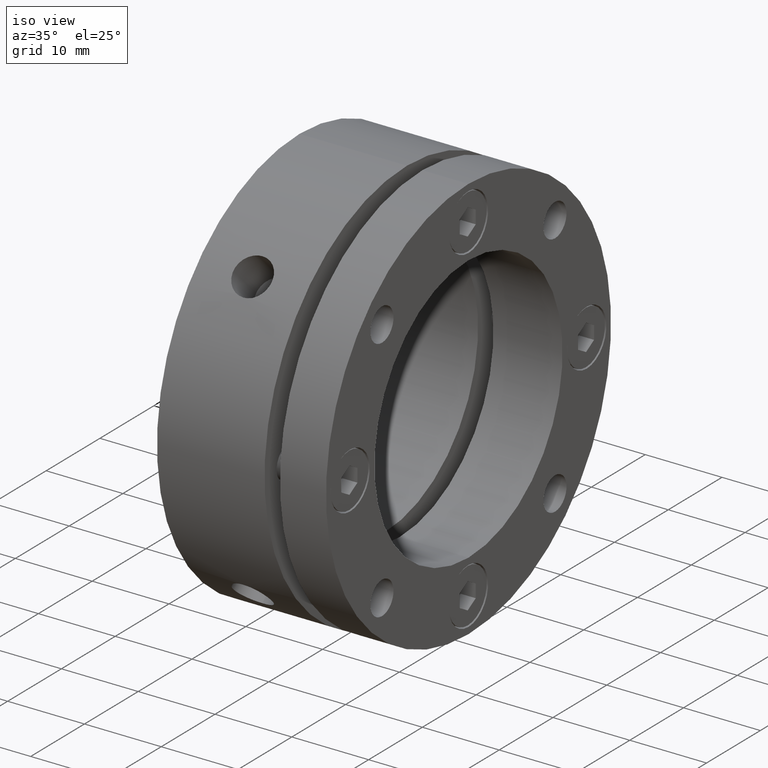
[diagram: clean part render]
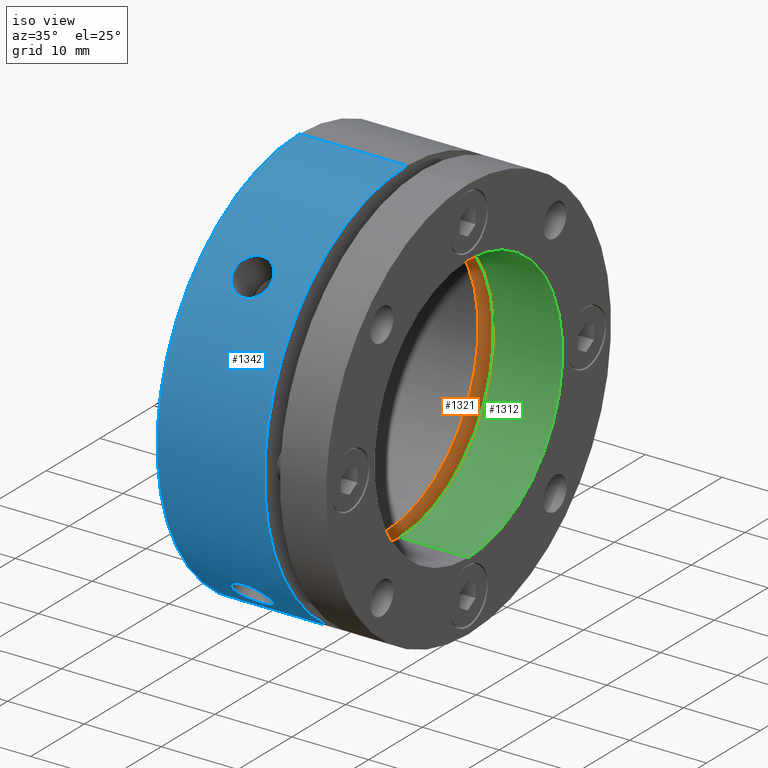
[diagram: same view with three faces highlighted in distinct colors, each labeled with its STEP entity id]
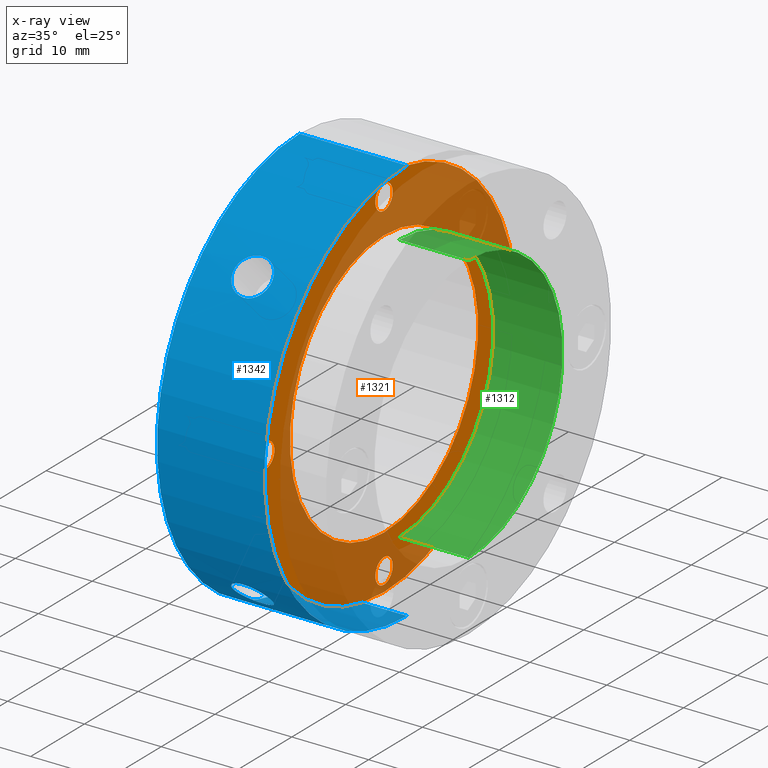
[diagram: x-ray of the same camera — body ghosted, the three highlighted faces saturated]
A machine part, iso view with three faces highlighted in distinct colors.
The next image is the same camera in x-ray (body ghosted, the three faces saturated) — at least one of them is partly hidden behind the body in this view.
Their STEP definitions:

[orange] entity #1321 — the highlighted planar face has unit normal (-1, 0, 0).
#15 = CARTESIAN_POINT ( 'NONE',  ( 11.00000000000002300, 22.00000000000001400, -4.041333999999999800E-015 ) ) ;
#16 = DIRECTION ( 'NONE',  ( -1.000000000000000000, 0.0000000000000000000, 0.0000000000000000000 ) ) ;
#17 = DIRECTION ( 'NONE',  ( 0.0000000000000000000, 0.0000000000000000000, 1.000000000000000000 ) ) ;
#451 = CARTESIAN_POINT ( 'NONE',  ( 11.00000000000002300, -2.694223000000000100E-015, -22.00000000000001400 ) ) ;
#452 = DIRECTION ( 'NONE',  ( -1.000000000000000000, 0.0000000000000000000, 0.0000000000000000000 ) ) ;
#453 = DIRECTION ( 'NONE',  ( 0.0000000000000000000, 0.0000000000000000000, 1.000000000000000000 ) ) ;
#462 = CARTESIAN_POINT ( 'NONE',  ( 11.00000000000002300, 22.00000000000001400, -4.041333999999999800E-015 ) ) ;
#463 = DIRECTION ( 'NONE',  ( -1.000000000000000000, 0.0000000000000000000, 0.0000000000000000000 ) ) ;
#464 = DIRECTION ( 'NONE',  ( 0.0000000000000000000, 0.0000000000000000000, 1.000000000000000000 ) ) ;
#468 = CARTESIAN_POINT ( 'NONE',  ( 11.00000000000002300, -22.00000000000001400, 1.347110999999999900E-015 ) ) ;
#469 = DIRECTION ( 'NONE',  ( -1.000000000000000000, 0.0000000000000000000, 0.0000000000000000000 ) ) ;
#470 = DIRECTION ( 'NONE',  ( 0.0000000000000000000, 0.0000000000000000000, 1.000000000000000000 ) ) ;
#474 = CARTESIAN_POINT ( 'NONE',  ( 11.00000000000002300, 0.0000000000000000000, 0.0000000000000000000 ) ) ;
#475 = DIRECTION ( 'NONE',  ( -1.000000000000000000, -0.0000000000000000000, -0.0000000000000000000 ) ) ;
#476 = DIRECTION ( 'NONE',  ( 0.0000000000000000000, 0.0000000000000000000, -1.000000000000000000 ) ) ;
#483 = CARTESIAN_POINT ( 'NONE',  ( 11.00000000000002300, 0.0000000000000000000, 22.00000000000001400 ) ) ;
#484 = DIRECTION ( 'NONE',  ( -1.000000000000000000, 0.0000000000000000000, 0.0000000000000000000 ) ) ;
#485 = DIRECTION ( 'NONE',  ( 0.0000000000000000000, 0.0000000000000000000, 1.000000000000000000 ) ) ;
#553 = CARTESIAN_POINT ( 'NONE',  ( 11.00000000000001800, 0.0000000000000000000, 0.0000000000000000000 ) ) ;
#554 = DIRECTION ( 'NONE',  ( -1.000000000000000000, 0.0000000000000000000, 0.0000000000000000000 ) ) ;
#555 = DIRECTION ( 'NONE',  ( 0.0000000000000000000, 0.0000000000000000000, 1.000000000000000000 ) ) ;
#801 = DIRECTION ( 'NONE',  ( -1.000000000000000000, 0.0000000000000000000, 0.0000000000000000000 ) ) ;
#807 = PLANE ( 'NONE',  #1769 ) ;
#808 = CARTESIAN_POINT ( 'NONE',  ( 11.00000000000002300, 12.25000000000000400, 0.0000000000000000000 ) ) ;
#810 = DIRECTION ( 'NONE',  ( 0.0000000000000000000, 0.0000000000000000000, 1.000000000000000000 ) ) ;
#824 = EDGE_CURVE ( 'NONE', #2826, #2905, #1049, .T. ) ;
#890 = EDGE_CURVE ( 'NONE', #2929, #2853, #1143, .T. ) ;
#893 = EDGE_CURVE ( 'NONE', #2905, #2826, #1149, .T. ) ;
#895 = EDGE_CURVE ( 'NONE', #2877, #2856, #1147, .T. ) ;
#898 = EDGE_CURVE ( 'NONE', #2912, #2830, #1154, .T. ) ;
#901 = EDGE_CURVE ( 'NONE', #2894, #2862, #1158, .T. ) ;
#929 = EDGE_CURVE ( 'NONE', #2926, #2935, #1203, .T. ) ;
#1049 = CIRCLE ( 'NONE', #3530, 1.621000000000000000 ) ;
#1143 = CIRCLE ( 'NONE', #3026, 1.621000000000000900 ) ;
#1147 = CIRCLE ( 'NONE', #3030, 1.621000000000000000 ) ;
#1149 = CIRCLE ( 'NONE', #3029, 1.621000000000000000 ) ;
#1154 = CIRCLE ( 'NONE', #3031, 17.50000000000000000 ) ;
#1158 = CIRCLE ( 'NONE', #3033, 1.621000000000000900 ) ;
#1203 = CIRCLE ( 'NONE', #3046, 24.50000000000000700 ) ;
#1321 = ADVANCED_FACE ( 'NONE', ( #1601, #1605, #1602, #1604, #1603, #1606 ), #807, .F. ) ;
#1353 = EDGE_LOOP ( 'NONE', ( #3201, #3202 ) ) ;
#1358 = EDGE_LOOP ( 'NONE', ( #3205, #3206 ) ) ;
#1362 = EDGE_LOOP ( 'NONE', ( #3195, #3196 ) ) ;
#1367 = EDGE_LOOP ( 'NONE', ( #3203, #3204 ) ) ;
#1368 = EDGE_LOOP ( 'NONE', ( #3197, #3198 ) ) ;
#1369 = EDGE_LOOP ( 'NONE', ( #3199, #3200 ) ) ;
#1601 = FACE_BOUND ( 'NONE', #1362, .T. ) ;
#1602 = FACE_BOUND ( 'NONE', #1369, .T. ) ;
#1603 = FACE_BOUND ( 'NONE', #1367, .T. ) ;
#1604 = FACE_BOUND ( 'NONE', #1353, .T. ) ;
#1605 = FACE_BOUND ( 'NONE', #1368, .T. ) ;
#1606 = FACE_OUTER_BOUND ( 'NONE', #1358, .T. ) ;
#1769 = AXIS2_PLACEMENT_3D ( 'NONE', #808, #801, #810 ) ;
#1847 = AXIS2_PLACEMENT_3D ( 'NONE', #2391, #2392, #2393 ) ;
#1853 = AXIS2_PLACEMENT_3D ( 'NONE', #2409, #2410, #2411 ) ;
#1854 = AXIS2_PLACEMENT_3D ( 'NONE', #2412, #2413, #2414 ) ;
#1855 = AXIS2_PLACEMENT_3D ( 'NONE', #2417, #2418, #2419 ) ;
#1856 = AXIS2_PLACEMENT_3D ( 'NONE', #2420, #2421, #2422 ) ;
#2006 = CARTESIAN_POINT ( 'NONE',  ( 11.00000000000002300, 22.00000000000001400, 1.620999999999996000 ) ) ;
#2007 = CARTESIAN_POINT ( 'NONE',  ( 11.00000000000002300, 2.143131898507868200E-015, 17.50000000000000000 ) ) ;
#2027 = CARTESIAN_POINT ( 'NONE',  ( 11.00000000000002300, -2.694223000000000100E-015, -20.37900000000001200 ) ) ;
#2030 = CARTESIAN_POINT ( 'NONE',  ( 11.00000000000002300, -22.00000000000001400, 1.621000000000001300 ) ) ;
#2035 = CARTESIAN_POINT ( 'NONE',  ( 11.00000000000002300, 0.0000000000000000000, 23.62100000000001300 ) ) ;
#2048 = CARTESIAN_POINT ( 'NONE',  ( 11.00000000000002300, -22.00000000000001400, -1.620999999999998700 ) ) ;
#2063 = CARTESIAN_POINT ( 'NONE',  ( 11.00000000000002300, 1.985152461417858200E-016, 20.37900000000001200 ) ) ;
#2073 = CARTESIAN_POINT ( 'NONE',  ( 11.00000000000002300, 22.00000000000001400, -1.621000000000004200 ) ) ;
#2080 = CARTESIAN_POINT ( 'NONE',  ( 11.00000000000002300, 0.0000000000000000000, -17.50000000000000000 ) ) ;
#2094 = CARTESIAN_POINT ( 'NONE',  ( 11.00000000000001800, 3.000384657911016300E-015, -24.50000000000000700 ) ) ;
#2097 = CARTESIAN_POINT ( 'NONE',  ( 11.00000000000002300, -2.495707753858214300E-015, -23.62100000000001300 ) ) ;
#2103 = CARTESIAN_POINT ( 'NONE',  ( 11.00000000000001800, 0.0000000000000000000, 24.50000000000000700 ) ) ;
#2391 = CARTESIAN_POINT ( 'NONE',  ( 11.00000000000001800, 0.0000000000000000000, 0.0000000000000000000 ) ) ;
#2392 = DIRECTION ( 'NONE',  ( -1.000000000000000000, 0.0000000000000000000, 0.0000000000000000000 ) ) ;
#2393 = DIRECTION ( 'NONE',  ( 0.0000000000000000000, 0.0000000000000000000, 1.000000000000000000 ) ) ;
#2409 = CARTESIAN_POINT ( 'NONE',  ( 11.00000000000002300, 0.0000000000000000000, 0.0000000000000000000 ) ) ;
#2410 = DIRECTION ( 'NONE',  ( -1.000000000000000000, -0.0000000000000000000, -0.0000000000000000000 ) ) ;
#2411 = DIRECTION ( 'NONE',  ( 0.0000000000000000000, 0.0000000000000000000, -1.000000000000000000 ) ) ;
#2412 = CARTESIAN_POINT ( 'NONE',  ( 11.00000000000002300, 0.0000000000000000000, 22.00000000000001400 ) ) ;
#2413 = DIRECTION ( 'NONE',  ( -1.000000000000000000, 0.0000000000000000000, 0.0000000000000000000 ) ) ;
#2414 = DIRECTION ( 'NONE',  ( 0.0000000000000000000, 0.0000000000000000000, 1.000000000000000000 ) ) ;
#2417 = CARTESIAN_POINT ( 'NONE',  ( 11.00000000000002300, -22.00000000000001400, 1.347110999999999900E-015 ) ) ;
#2418 = DIRECTION ( 'NONE',  ( -1.000000000000000000, 0.0000000000000000000, 0.0000000000000000000 ) ) ;
#2419 = DIRECTION ( 'NONE',  ( 0.0000000000000000000, 0.0000000000000000000, 1.000000000000000000 ) ) ;
#2420 = CARTESIAN_POINT ( 'NONE',  ( 11.00000000000002300, -2.694223000000000100E-015, -22.00000000000001400 ) ) ;
#2421 = DIRECTION ( 'NONE',  ( -1.000000000000000000, 0.0000000000000000000, 0.0000000000000000000 ) ) ;
#2422 = DIRECTION ( 'NONE',  ( 0.0000000000000000000, 0.0000000000000000000, 1.000000000000000000 ) ) ;
#2603 = CIRCLE ( 'NONE', #1847, 24.50000000000000700 ) ;
#2609 = CIRCLE ( 'NONE', #1853, 17.50000000000000000 ) ;
#2610 = CIRCLE ( 'NONE', #1854, 1.621000000000000900 ) ;
#2611 = CIRCLE ( 'NONE', #1855, 1.621000000000000000 ) ;
#2612 = CIRCLE ( 'NONE', #1856, 1.621000000000000900 ) ;
#2826 = VERTEX_POINT ( 'NONE', #2006 ) ;
#2830 = VERTEX_POINT ( 'NONE', #2007 ) ;
#2853 = VERTEX_POINT ( 'NONE', #2027 ) ;
#2856 = VERTEX_POINT ( 'NONE', #2030 ) ;
#2862 = VERTEX_POINT ( 'NONE', #2035 ) ;
#2877 = VERTEX_POINT ( 'NONE', #2048 ) ;
#2894 = VERTEX_POINT ( 'NONE', #2063 ) ;
#2905 = VERTEX_POINT ( 'NONE', #2073 ) ;
#2912 = VERTEX_POINT ( 'NONE', #2080 ) ;
#2926 = VERTEX_POINT ( 'NONE', #2094 ) ;
#2929 = VERTEX_POINT ( 'NONE', #2097 ) ;
#2935 = VERTEX_POINT ( 'NONE', #2103 ) ;
#3026 = AXIS2_PLACEMENT_3D ( 'NONE', #451, #452, #453 ) ;
#3029 = AXIS2_PLACEMENT_3D ( 'NONE', #462, #463, #464 ) ;
#3030 = AXIS2_PLACEMENT_3D ( 'NONE', #468, #469, #470 ) ;
#3031 = AXIS2_PLACEMENT_3D ( 'NONE', #474, #475, #476 ) ;
#3033 = AXIS2_PLACEMENT_3D ( 'NONE', #483, #484, #485 ) ;
#3046 = AXIS2_PLACEMENT_3D ( 'NONE', #553, #554, #555 ) ;
#3195 = ORIENTED_EDGE ( 'NONE', *, *, #898, .T. ) ;
#3196 = ORIENTED_EDGE ( 'NONE', *, *, #3511, .T. ) ;
#3197 = ORIENTED_EDGE ( 'NONE', *, *, #3512, .T. ) ;
#3198 = ORIENTED_EDGE ( 'NONE', *, *, #901, .T. ) ;
#3199 = ORIENTED_EDGE ( 'NONE', *, *, #3513, .T. ) ;
#3200 = ORIENTED_EDGE ( 'NONE', *, *, #895, .T. ) ;
#3201 = ORIENTED_EDGE ( 'NONE', *, *, #3514, .T. ) ;
#3202 = ORIENTED_EDGE ( 'NONE', *, *, #890, .T. ) ;
#3203 = ORIENTED_EDGE ( 'NONE', *, *, #824, .T. ) ;
#3204 = ORIENTED_EDGE ( 'NONE', *, *, #893, .T. ) ;
#3205 = ORIENTED_EDGE ( 'NONE', *, *, #3505, .F. ) ;
#3206 = ORIENTED_EDGE ( 'NONE', *, *, #929, .F. ) ;
#3505 = EDGE_CURVE ( 'NONE', #2935, #2926, #2603, .T. ) ;
#3511 = EDGE_CURVE ( 'NONE', #2830, #2912, #2609, .T. ) ;
#3512 = EDGE_CURVE ( 'NONE', #2862, #2894, #2610, .T. ) ;
#3513 = EDGE_CURVE ( 'NONE', #2856, #2877, #2611, .T. ) ;
#3514 = EDGE_CURVE ( 'NONE', #2853, #2929, #2612, .T. ) ;
#3530 = AXIS2_PLACEMENT_3D ( 'NONE', #15, #16, #17 ) ;

[blue] entity #1342 — the highlighted cylindrical surface (partial cylindrical patch) has radius 26.5 mm, axis along (1, 0, 0).
#12 = B_SPLINE_CURVE_WITH_KNOTS ( 'NONE', 3,
 ( #67, #37, #62, #68, #69, #70, #71, #72, #73, #74, #75, #76, #77, #78, #79, #80, #81, #82, #83, #84, #85, #86, #87, #88, #89, #90, #91, #92, #93, #94, #95, #96, #97, #98 ),
 .UNSPECIFIED., .F., .F.,
 ( 4, 2, 2, 2, 2, 2, 2, 2, 2, 2, 2, 2, 2, 2, 2, 2, 4 ),
 ( 0.003911146420596612100, 0.004399819909867397700, 0.004888493399138182400, 0.005377166888408968000, 0.005865840377679752700, 0.006354513866950538300, 0.006843187356221323800, 0.007331860845492109400, 0.007820534334762895000, 0.008309207824033680600, 0.008797881313304464400, 0.009286554802575250000, 0.009775228291846035600, 0.01026390178111681900, 0.01075257527038760500, 0.01124124875965839100, 0.01172992224892917600 ),
 .UNSPECIFIED. ) ;
#33 = DIRECTION ( 'NONE',  ( 1.000000000000000000, 0.0000000000000000000, 0.0000000000000000000 ) ) ;
#37 = CARTESIAN_POINT ( 'NONE',  ( 7.163127299674154200, -20.42252505914400000, -16.88699115321125900 ) ) ;
#62 = CARTESIAN_POINT ( 'NONE',  ( 7.328826829804715900, -20.41207963104069400, -16.89964605834052200 ) ) ;
#63 = CARTESIAN_POINT ( 'NONE',  ( 7.328826829804712300, -16.89964605834052200, 20.41207963104069400 ) ) ;
#64 = CARTESIAN_POINT ( 'NONE',  ( 14.00000000000000000, 0.0000000000000000000, 0.0000000000000000000 ) ) ;
#65 = DIRECTION ( 'NONE',  ( -1.000000000000000000, -0.0000000000000000000, -0.0000000000000000000 ) ) ;
#66 = DIRECTION ( 'NONE',  ( 0.0000000000000000000, 0.0000000000000000000, -1.000000000000000000 ) ) ;
#67 = CARTESIAN_POINT ( 'NONE',  ( 6.999999999999992900, -20.42252505914400400, -16.88699115321126200 ) ) ;
#68 = CARTESIAN_POINT ( 'NONE',  ( 7.649444703947649400, -20.37105109376302900, -16.94907988937530200 ) ) ;
#69 = CARTESIAN_POINT ( 'NONE',  ( 7.805287607310417800, -20.34069051318950700, -16.98559004762767100 ) ) ;
#70 = CARTESIAN_POINT ( 'NONE',  ( 8.107995122498069300, -20.25979336113298500, -17.08200025710155100 ) ) ;
#71 = CARTESIAN_POINT ( 'NONE',  ( 8.254217154311556100, -20.20911624288492100, -17.14204951035855000 ) ) ;
#72 = CARTESIAN_POINT ( 'NONE',  ( 8.524918396619794300, -20.09119960400243300, -17.28010240728194100 ) ) ;
#73 = CARTESIAN_POINT ( 'NONE',  ( 8.651122310615971100, -20.02356086166225100, -17.35859125176534300 ) ) ;
#74 = CARTESIAN_POINT ( 'NONE',  ( 8.884509889499467400, -19.86955547543179900, -17.53466409815981200 ) ) ;
#75 = CARTESIAN_POINT ( 'NONE',  ( 8.987846360203962000, -19.78571615273033800, -17.62934491966706600 ) ) ;
#76 = CARTESIAN_POINT ( 'NONE',  ( 9.168800680121650600, -19.60437288733705700, -17.83078600811664700 ) ) ;
#77 = CARTESIAN_POINT ( 'NONE',  ( 9.247064805431541900, -19.50568906871816200, -17.93881384928463200 ) ) ;
#78 = CARTESIAN_POINT ( 'NONE',  ( 9.372456233183694300, -19.29932662527812000, -18.16064261461109900 ) ) ;
#79 = CARTESIAN_POINT ( 'NONE',  ( 9.419721783627464300, -19.19220020816784700, -18.27389220533571600 ) ) ;
#80 = CARTESIAN_POINT ( 'NONE',  ( 9.483655850769308100, -18.96977180988144300, -18.50468704527733300 ) ) ;
#81 = CARTESIAN_POINT ( 'NONE',  ( 9.500117683666028200, -18.85390187467754700, -18.62277322913345800 ) ) ;
#82 = CARTESIAN_POINT ( 'NONE',  ( 9.499881034150940100, -18.62022546434828400, -18.85641806655057800 ) ) ;
#83 = CARTESIAN_POINT ( 'NONE',  ( 9.483546700827737700, -18.50426022737659400, -18.97018429843132400 ) ) ;
#84 = CARTESIAN_POINT ( 'NONE',  ( 9.419776458277143000, -18.27412240155253500, -19.19197721267918100 ) ) ;
#85 = CARTESIAN_POINT ( 'NONE',  ( 9.371557692110071600, -18.15872205262211700, -19.30113288809296500 ) ) ;
#86 = CARTESIAN_POINT ( 'NONE',  ( 9.245862567482708600, -17.93702352883771700, -19.50733462762484300 ) ) ;
#87 = CARTESIAN_POINT ( 'NONE',  ( 9.168984200511300000, -17.83097037494781000, -19.60420827089605200 ) ) ;
#88 = CARTESIAN_POINT ( 'NONE',  ( 8.987400337795850900, -17.62886836045021600, -19.78614380749449700 ) ) ;
#89 = CARTESIAN_POINT ( 'NONE',  ( 8.881797740486135200, -17.53249172572146700, -19.87146326477303400 ) ) ;
#90 = CARTESIAN_POINT ( 'NONE',  ( 8.651167097652097100, -17.35875277561302000, -20.02341180895162200 ) ) ;
#91 = CARTESIAN_POINT ( 'NONE',  ( 8.525317251607830800, -17.28024049060061200, -20.09108446813981500 ) ) ;
#92 = CARTESIAN_POINT ( 'NONE',  ( 8.251969538409879200, -17.14096903470928300, -20.21003629561460000 ) ) ;
#93 = CARTESIAN_POINT ( 'NONE',  ( 8.106586164907710700, -17.08152461615084100, -20.26019306205530800 ) ) ;
#94 = CARTESIAN_POINT ( 'NONE',  ( 7.805767017646610700, -16.98576971757908900, -20.34053915768444700 ) ) ;
#95 = CARTESIAN_POINT ( 'NONE',  ( 7.648103765587965300, -16.94874796759010500, -20.37132732730933400 ) ) ;
#96 = CARTESIAN_POINT ( 'NONE',  ( 7.325381949833463600, -16.89924195849448600, -20.41241426126584100 ) ) ;
#97 = CARTESIAN_POINT ( 'NONE',  ( 7.163127028732442400, -16.88699115321127000, -20.42252505914400700 ) ) ;
#98 = CARTESIAN_POINT ( 'NONE',  ( 6.999999999999992900, -16.88699115321126200, -20.42252505914400400 ) ) ;
#99 = CARTESIAN_POINT ( 'NONE',  ( 7.163127299674152400, -16.88699115321125900, 20.42252505914400000 ) ) ;
#100 = CARTESIAN_POINT ( 'NONE',  ( 6.999999999999992900, -16.88699115321126200, 20.42252505914400400 ) ) ;
#101 = CARTESIAN_POINT ( 'NONE',  ( 7.649444703947644100, -16.94907988937530200, 20.37105109376302900 ) ) ;
#102 = CARTESIAN_POINT ( 'NONE',  ( 7.805287607310415200, -16.98559004762767100, 20.34069051318950700 ) ) ;
#103 = CARTESIAN_POINT ( 'NONE',  ( 8.107995122498067500, -17.08200025710155100, 20.25979336113298100 ) ) ;
#104 = CARTESIAN_POINT ( 'NONE',  ( 8.254217154311550800, -17.14204951035855000, 20.20911624288492100 ) ) ;
#105 = CARTESIAN_POINT ( 'NONE',  ( 8.524918396619792600, -17.28010240728194100, 20.09119960400244100 ) ) ;
#106 = CARTESIAN_POINT ( 'NONE',  ( 8.651122310615969400, -17.35859125176534000, 20.02356086166224700 ) ) ;
#107 = CARTESIAN_POINT ( 'NONE',  ( 8.884509889499463900, -17.53466409815980100, 19.86955547543180600 ) ) ;
#108 = CARTESIAN_POINT ( 'NONE',  ( 8.987846360203962000, -17.62934491966706200, 19.78571615273033800 ) ) ;
#109 = CARTESIAN_POINT ( 'NONE',  ( 9.168800680121647100, -17.83078600811664300, 19.60437288733706800 ) ) ;
#110 = CARTESIAN_POINT ( 'NONE',  ( 9.247064805431541900, -17.93881384928463500, 19.50568906871816900 ) ) ;
#111 = CARTESIAN_POINT ( 'NONE',  ( 9.372456233183694300, -18.16064261461109900, 19.29932662527812700 ) ) ;
#112 = CARTESIAN_POINT ( 'NONE',  ( 9.419721783627464300, -18.27389220533570900, 19.19220020816784700 ) ) ;
#113 = CARTESIAN_POINT ( 'NONE',  ( 9.483655850769308100, -18.50468704527732600, 18.96977180988145100 ) ) ;
#114 = CARTESIAN_POINT ( 'NONE',  ( 9.500117683666028200, -18.62277322913345000, 18.85390187467755400 ) ) ;
#115 = CARTESIAN_POINT ( 'NONE',  ( 9.499881034150940100, -18.85641806655057800, 18.62022546434829100 ) ) ;
#116 = CARTESIAN_POINT ( 'NONE',  ( 9.483546700827739400, -18.97018429843132000, 18.50426022737660100 ) ) ;
#117 = CARTESIAN_POINT ( 'NONE',  ( 9.419776458277144800, -19.19197721267917700, 18.27412240155254600 ) ) ;
#118 = CARTESIAN_POINT ( 'NONE',  ( 9.371557692110073400, -19.30113288809296200, 18.15872205262212800 ) ) ;
#120 = CARTESIAN_POINT ( 'NONE',  ( 9.245862567482712200, -19.50733462762483600, 17.93702352883771700 ) ) ;
#121 = CARTESIAN_POINT ( 'NONE',  ( 9.168984200511301800, -19.60420827089605200, 17.83097037494782100 ) ) ;
#123 = EDGE_LOOP ( 'NONE', ( #3299, #3300, #3301, #3302 ) ) ;
#122 = CARTESIAN_POINT ( 'NONE',  ( 8.987400337795852700, -19.78614380749450100, 17.62886836045022000 ) ) ;
#124 = CARTESIAN_POINT ( 'NONE',  ( 8.881797740486133500, -19.87146326477303400, 17.53249172572147100 ) ) ;
#125 = CARTESIAN_POINT ( 'NONE',  ( 8.651167097652102500, -20.02341180895161400, 17.35875277561302400 ) ) ;
#126 = CARTESIAN_POINT ( 'NONE',  ( 8.525317251607834400, -20.09108446813981200, 17.28024049060061200 ) ) ;
#127 = CARTESIAN_POINT ( 'NONE',  ( 8.251969538409879200, -20.21003629561459600, 17.14096903470928300 ) ) ;
#128 = CARTESIAN_POINT ( 'NONE',  ( 8.106586164907710700, -20.26019306205530800, 17.08152461615084100 ) ) ;
#129 = CARTESIAN_POINT ( 'NONE',  ( 7.805767017646610700, -20.34053915768444700, 16.98576971757908900 ) ) ;
#130 = CARTESIAN_POINT ( 'NONE',  ( 7.648103765587965300, -20.37132732730933400, 16.94874796759010500 ) ) ;
#131 = CARTESIAN_POINT ( 'NONE',  ( 7.325381949833463600, -20.41241426126584100, 16.89924195849448600 ) ) ;
#132 = CARTESIAN_POINT ( 'NONE',  ( 7.163127028732441600, -20.42252505914400700, 16.88699115321127000 ) ) ;
#133 = CARTESIAN_POINT ( 'NONE',  ( 6.999999999999992900, -20.42252505914400400, 16.88699115321126200 ) ) ;
#134 = CARTESIAN_POINT ( 'NONE',  ( 10.99999999999999300, 3.245314017740486600E-015, 26.50000000000000400 ) ) ;
#137 = CARTESIAN_POINT ( 'NONE',  ( -8.673617379884035500E-015, 0.0000000000000000000, 0.0000000000000000000 ) ) ;
#138 = DIRECTION ( 'NONE',  ( 1.000000000000000000, 0.0000000000000000000, 0.0000000000000000000 ) ) ;
#139 = DIRECTION ( 'NONE',  ( 0.0000000000000000000, 0.0000000000000000000, -1.000000000000000000 ) ) ;
#143 = DIRECTION ( 'NONE',  ( 1.000000000000000000, 0.0000000000000000000, 0.0000000000000000000 ) ) ;
#145 = CARTESIAN_POINT ( 'NONE',  ( 10.99999999999999300, 0.0000000000000000000, -26.50000000000000400 ) ) ;
#149 = CARTESIAN_POINT ( 'NONE',  ( 6.836872971389641200, -20.42252505914400400, 16.88699115321126200 ) ) ;
#155 = CARTESIAN_POINT ( 'NONE',  ( 6.999999999999992900, -20.42252505914400400, 16.88699115321126200 ) ) ;
#157 = CARTESIAN_POINT ( 'NONE',  ( 6.671173717941164800, -20.41207966614633300, 16.89964601573908000 ) ) ;
#158 = CARTESIAN_POINT ( 'NONE',  ( 6.350556346590249000, -20.37105126318494900, 16.94907968554873900 ) ) ;
#159 = CARTESIAN_POINT ( 'NONE',  ( 6.194713680314719400, -20.34069078149506600, 16.98558972555338200 ) ) ;
#160 = CARTESIAN_POINT ( 'NONE',  ( 5.892006607877839900, -20.25979389937317500, 17.08199961796464800 ) ) ;
#162 = CARTESIAN_POINT ( 'NONE',  ( 5.745784737054952600, -20.20911693917952700, 17.14204868799930300 ) ) ;
#163 = CARTESIAN_POINT ( 'NONE',  ( 5.475083760361307000, -20.09120067115384600, 17.28010116505684500 ) ) ;
#164 = CARTESIAN_POINT ( 'NONE',  ( 5.348879950039254500, -20.02356214338349400, 17.35858977075102800 ) ) ;
#165 = CARTESIAN_POINT ( 'NONE',  ( 5.115492503606697400, -19.86955726458241900, 17.53466206827617000 ) ) ;
#166 = CARTESIAN_POINT ( 'NONE',  ( 5.012155960092738600, -19.78571814726580100, 17.62934267826294000 ) ) ;
#167 = CARTESIAN_POINT ( 'NONE',  ( 4.831201509883642100, -19.60437541278987400, 17.83078322859279300 ) ) ;
#168 = CARTESIAN_POINT ( 'NONE',  ( 4.752937276282671600, -19.50569190415997100, 17.93881076330589900 ) ) ;
#169 = CARTESIAN_POINT ( 'NONE',  ( 4.627545435577467000, -19.29932996214862600, 18.16063906567783400 ) ) ;
#170 = CARTESIAN_POINT ( 'NONE',  ( 4.580279638091028900, -19.19220380839803000, 18.27388842094586600 ) ) ;
#171 = CARTESIAN_POINT ( 'NONE',  ( 4.516344958509043800, -18.96977597130445800, 18.50468277606474700 ) ) ;
#172 = CARTESIAN_POINT ( 'NONE',  ( 4.499882746456964200, -18.85390674765792000, 18.62276829876767800 ) ) ;
#173 = CARTESIAN_POINT ( 'NONE',  ( 4.500118526314252200, -18.62022990202527200, 18.85641368751468100 ) ) ;
#174 = CARTESIAN_POINT ( 'NONE',  ( 4.516452499645127200, -18.50426445139232400, 18.97018018091660700 ) ) ;
#175 = CARTESIAN_POINT ( 'NONE',  ( 4.580222117996054700, -18.27412620099377000, 19.19197359766983300 ) ) ;
#176 = CARTESIAN_POINT ( 'NONE',  ( 4.628440607710321500, -18.15872564577480800, 19.30112951080846200 ) ) ;
#177 = CARTESIAN_POINT ( 'NONE',  ( 4.754135376536302400, -17.93702656074298900, 19.50733184294360400 ) ) ;
#178 = CARTESIAN_POINT ( 'NONE',  ( 4.831013621035617200, -17.83097314307082800, 19.60420575561179000 ) ) ;
#179 = CARTESIAN_POINT ( 'NONE',  ( 5.012597318744874500, -17.62887062520363600, 19.78614179210054400 ) ) ;
#180 = CARTESIAN_POINT ( 'NONE',  ( 5.118199912034083500, -17.53249371265572500, 19.87146151373917400 ) ) ;
#181 = CARTESIAN_POINT ( 'NONE',  ( 5.348830655180390400, -17.35875424992826400, 20.02341053284696300 ) ) ;
#182 = CARTESIAN_POINT ( 'NONE',  ( 5.474680588242367000, -17.28024173594950200, 20.09108339826799000 ) ) ;
#183 = CARTESIAN_POINT ( 'NONE',  ( 5.748028537493188300, -17.14096987029815000, 20.21003558815624500 ) ) ;
#184 = CARTESIAN_POINT ( 'NONE',  ( 5.893412127706922000, -17.08152524646758900, 20.26019253125194600 ) ) ;
#185 = CARTESIAN_POINT ( 'NONE',  ( 6.194231693262380200, -16.98577004108309700, 20.34053888815511300 ) ) ;
#186 = CARTESIAN_POINT ( 'NONE',  ( 6.351895165859009000, -16.94874817384986400, 20.37132715587372500 ) ) ;
#187 = CARTESIAN_POINT ( 'NONE',  ( 6.674617511394299800, -16.89924199880103800, 20.41241422806662300 ) ) ;
#188 = CARTESIAN_POINT ( 'NONE',  ( 6.836872700447933000, -16.88699115321126200, 20.42252505914400400 ) ) ;
#189 = CARTESIAN_POINT ( 'NONE',  ( 6.999999999999992900, -16.88699115321126200, 20.42252505914400400 ) ) ;
#193 = CARTESIAN_POINT ( 'NONE',  ( 6.836872971389643900, -16.88699115321126200, -20.42252505914399700 ) ) ;
#198 = CARTESIAN_POINT ( 'NONE',  ( 6.999999999999992900, -16.88699115321126200, -20.42252505914400400 ) ) ;
#199 = CARTESIAN_POINT ( 'NONE',  ( 6.671173717941165600, -16.89964601573908000, -20.41207966614634400 ) ) ;
#200 = CARTESIAN_POINT ( 'NONE',  ( 6.350556346590252600, -16.94907968554873900, -20.37105126318494900 ) ) ;
#201 = CARTESIAN_POINT ( 'NONE',  ( 6.194713680314719400, -16.98558972555338200, -20.34069078149506600 ) ) ;
#202 = CARTESIAN_POINT ( 'NONE',  ( 5.892006607877842600, -17.08199961796464800, -20.25979389937317500 ) ) ;
#203 = CARTESIAN_POINT ( 'NONE',  ( 5.745784737054955300, -17.14204868799931000, -20.20911693917953400 ) ) ;
#204 = CARTESIAN_POINT ( 'NONE',  ( 5.475083760361307800, -17.28010116505685200, -20.09120067115385000 ) ) ;
#205 = CARTESIAN_POINT ( 'NONE',  ( 5.348879950039257200, -17.35858977075102800, -20.02356214338350400 ) ) ;
#206 = CARTESIAN_POINT ( 'NONE',  ( 5.115492503606700000, -17.53466206827616600, -19.86955726458241500 ) ) ;
#207 = CARTESIAN_POINT ( 'NONE',  ( 5.012155960092738600, -17.62934267826294000, -19.78571814726580100 ) ) ;
#208 = CARTESIAN_POINT ( 'NONE',  ( 4.831201509883642100, -17.83078322859279300, -19.60437541278987400 ) ) ;
#209 = CARTESIAN_POINT ( 'NONE',  ( 4.752937276282671600, -17.93881076330589900, -19.50569190415997100 ) ) ;
#210 = CARTESIAN_POINT ( 'NONE',  ( 4.627545435577467900, -18.16063906567783400, -19.29932996214861900 ) ) ;
#211 = CARTESIAN_POINT ( 'NONE',  ( 4.580279638091028900, -18.27388842094586600, -19.19220380839803400 ) ) ;
#212 = CARTESIAN_POINT ( 'NONE',  ( 4.516344958509042100, -18.50468277606474400, -18.96977597130446500 ) ) ;
#213 = CARTESIAN_POINT ( 'NONE',  ( 4.499882746456964200, -18.62276829876767400, -18.85390674765792000 ) ) ;
#214 = CARTESIAN_POINT ( 'NONE',  ( 4.500118526314253100, -18.85641368751467400, -18.62022990202527200 ) ) ;
#215 = CARTESIAN_POINT ( 'NONE',  ( 4.516452499645126300, -18.97018018091661100, -18.50426445139232400 ) ) ;
#216 = CARTESIAN_POINT ( 'NONE',  ( 4.580222117996055600, -19.19197359766983600, -18.27412620099377000 ) ) ;
#217 = CARTESIAN_POINT ( 'NONE',  ( 4.628440607710320600, -19.30112951080846200, -18.15872564577480800 ) ) ;
#218 = CARTESIAN_POINT ( 'NONE',  ( 4.754135376536302400, -19.50733184294360400, -17.93702656074298900 ) ) ;
#219 = CARTESIAN_POINT ( 'NONE',  ( 4.831013621035617200, -19.60420575561179000, -17.83097314307082800 ) ) ;
#220 = CARTESIAN_POINT ( 'NONE',  ( 5.012597318744875400, -19.78614179210054400, -17.62887062520363600 ) ) ;
#221 = CARTESIAN_POINT ( 'NONE',  ( 5.118199912034084400, -19.87146151373917400, -17.53249371265572500 ) ) ;
#222 = CARTESIAN_POINT ( 'NONE',  ( 5.348830655180391200, -20.02341053284696300, -17.35875424992826400 ) ) ;
#223 = CARTESIAN_POINT ( 'NONE',  ( 5.474680588242367900, -20.09108339826799000, -17.28024173594950200 ) ) ;
#224 = CARTESIAN_POINT ( 'NONE',  ( 5.748028537493190100, -20.21003558815624500, -17.14096987029815000 ) ) ;
#225 = CARTESIAN_POINT ( 'NONE',  ( 5.893412127706921100, -20.26019253125194600, -17.08152524646758900 ) ) ;
#226 = CARTESIAN_POINT ( 'NONE',  ( 6.194231693262376700, -20.34053888815511300, -16.98577004108309700 ) ) ;
#227 = CARTESIAN_POINT ( 'NONE',  ( 6.351895165859014400, -20.37132715587372500, -16.94874817384986400 ) ) ;
#228 = CARTESIAN_POINT ( 'NONE',  ( 6.674617511394305100, -20.41241422806662000, -16.89924199880104200 ) ) ;
#230 = CARTESIAN_POINT ( 'NONE',  ( 6.836872700447935700, -20.42252505914400700, -16.88699115321126200 ) ) ;
#231 = CARTESIAN_POINT ( 'NONE',  ( 6.999999999999992900, -20.42252505914400400, -16.88699115321126200 ) ) ;
#237 = EDGE_LOOP ( 'NONE', ( #3305, #3306 ) ) ;
#390 = EDGE_LOOP ( 'NONE', ( #3303, #3304 ) ) ;
#839 = EDGE_CURVE ( 'NONE', #2884, #2913, #1068, .T. ) ;
#840 = EDGE_CURVE ( 'NONE', #2885, #2914, #12, .T. ) ;
#841 = EDGE_CURVE ( 'NONE', #2893, #2880, #2994, .T. ) ;
#842 = EDGE_CURVE ( 'NONE', #2881, #2919, #1070, .T. ) ;
#845 = EDGE_CURVE ( 'NONE', #2919, #2884, #1073, .T. ) ;
#847 = EDGE_CURVE ( 'NONE', #2881, #2913, #1077, .T. ) ;
#849 = EDGE_CURVE ( 'NONE', #2880, #2893, #2820, .T. ) ;
#853 = EDGE_CURVE ( 'NONE', #2914, #2885, #2819, .T. ) ;
#1068 = CIRCLE ( 'NONE', #3016, 26.50000000000000400 ) ;
#1070 = CIRCLE ( 'NONE', #3017, 26.50000000000000400 ) ;
#1073 = LINE ( 'NONE', #145, #1076 ) ;
#1076 = VECTOR ( 'NONE', #33, 1000.000000000000000 ) ;
#1077 = LINE ( 'NONE', #134, #1079 ) ;
#1079 = VECTOR ( 'NONE', #143, 1000.000000000000000 ) ;
#1342 = ADVANCED_FACE ( 'NONE', ( #1655, #1659, #1656 ), #1662, .T. ) ;
#1655 = FACE_OUTER_BOUND ( 'NONE', #123, .T. ) ;
#1656 = FACE_BOUND ( 'NONE', #237, .T. ) ;
#1659 = FACE_BOUND ( 'NONE', #390, .T. ) ;
#1662 = CYLINDRICAL_SURFACE ( 'NONE', #1791, 26.50000000000000400 ) ;
#1791 = AXIS2_PLACEMENT_3D ( 'NONE', #1999, #2000, #1998 ) ;
#1998 = DIRECTION ( 'NONE',  ( 0.0000000000000000000, 0.0000000000000000000, -1.000000000000000000 ) ) ;
#1999 = CARTESIAN_POINT ( 'NONE',  ( 10.99999999999999300, 0.0000000000000000000, 0.0000000000000000000 ) ) ;
#2000 = DIRECTION ( 'NONE',  ( 1.000000000000000000, 0.0000000000000000000, 0.0000000000000000000 ) ) ;
#2051 = CARTESIAN_POINT ( 'NONE',  ( 6.999999999999992900, -20.42252505914400400, 16.88699115321126200 ) ) ;
#2052 = CARTESIAN_POINT ( 'NONE',  ( -8.673617379884035500E-015, 3.245314017740486600E-015, 26.50000000000000400 ) ) ;
#2055 = CARTESIAN_POINT ( 'NONE',  ( 14.00000000000000000, 0.0000000000000000000, -26.50000000000000400 ) ) ;
#2056 = CARTESIAN_POINT ( 'NONE',  ( 6.999999999999992900, -20.42252505914400400, -16.88699115321126200 ) ) ;
#2062 = CARTESIAN_POINT ( 'NONE',  ( 6.999999999999992900, -16.88699115321126200, 20.42252505914400400 ) ) ;
#2081 = CARTESIAN_POINT ( 'NONE',  ( 14.00000000000000000, 3.245314017740486600E-015, 26.50000000000000400 ) ) ;
#2082 = CARTESIAN_POINT ( 'NONE',  ( 6.999999999999992900, -16.88699115321126200, -20.42252505914400400 ) ) ;
#2087 = CARTESIAN_POINT ( 'NONE',  ( -8.673617379884035500E-015, 0.0000000000000000000, -26.50000000000000400 ) ) ;
#2819 = B_SPLINE_CURVE_WITH_KNOTS ( 'NONE', 3,
 ( #198, #193, #199, #200, #201, #202, #203, #204, #205, #206, #207, #208, #209, #210, #211, #212, #213, #214, #215, #216, #217, #218, #219, #220, #221, #222, #223, #224, #225, #226, #227, #228, #230, #231 ),
 .UNSPECIFIED., .F., .F.,
 ( 4, 2, 2, 2, 2, 2, 2, 2, 2, 2, 2, 2, 2, 2, 2, 2, 4 ),
 ( 0.01172992224892917600, 0.01221859573783419400, 0.01270726922673921100, 0.01319594271564422800, 0.01368461620454924600, 0.01417328969345426500, 0.01466196318235928200, 0.01515063667126430000, 0.01563931016016931900, 0.01612798364907433400, 0.01661665713797935000, 0.01710533062688436900, 0.01759400411578938800, 0.01808267760469440400, 0.01857135109359942300, 0.01906002458250444200, 0.01954869807140945800 ),
 .UNSPECIFIED. ) ;
#2820 = B_SPLINE_CURVE_WITH_KNOTS ( 'NONE', 3,
 ( #155, #149, #157, #158, #159, #160, #162, #163, #164, #165, #166, #167, #168, #169, #170, #171, #172, #173, #174, #175, #176, #177, #178, #179, #180, #181, #182, #183, #184, #185, #186, #187, #188, #189 ),
 .UNSPECIFIED., .F., .F.,
 ( 4, 2, 2, 2, 2, 2, 2, 2, 2, 2, 2, 2, 2, 2, 2, 2, 4 ),
 ( 0.01172992224892916700, 0.01221859573783418500, 0.01270726922673920100, 0.01319594271564421800, 0.01368461620454923500, 0.01417328969345425100, 0.01466196318235926800, 0.01515063667126428600, 0.01563931016016930100, 0.01612798364907432100, 0.01661665713797933600, 0.01710533062688435200, 0.01759400411578936800, 0.01808267760469438700, 0.01857135109359940200, 0.01906002458250442100, 0.01954869807140943700 ),
 .UNSPECIFIED. ) ;
#2880 = VERTEX_POINT ( 'NONE', #2051 ) ;
#2881 = VERTEX_POINT ( 'NONE', #2052 ) ;
#2884 = VERTEX_POINT ( 'NONE', #2055 ) ;
#2885 = VERTEX_POINT ( 'NONE', #2056 ) ;
#2893 = VERTEX_POINT ( 'NONE', #2062 ) ;
#2913 = VERTEX_POINT ( 'NONE', #2081 ) ;
#2914 = VERTEX_POINT ( 'NONE', #2082 ) ;
#2919 = VERTEX_POINT ( 'NONE', #2087 ) ;
#2994 = B_SPLINE_CURVE_WITH_KNOTS ( 'NONE', 3,
 ( #100, #99, #63, #101, #102, #103, #104, #105, #106, #107, #108, #109, #110, #111, #112, #113, #114, #115, #116, #117, #118, #120, #121, #122, #124, #125, #126, #127, #128, #129, #130, #131, #132, #133 ),
 .UNSPECIFIED., .F., .F.,
 ( 4, 2, 2, 2, 2, 2, 2, 2, 2, 2, 2, 2, 2, 2, 2, 2, 4 ),
 ( 0.003911146420596613000, 0.004399819909867397700, 0.004888493399138182400, 0.005377166888408967100, 0.005865840377679751800, 0.006354513866950536500, 0.006843187356221321200, 0.007331860845492106000, 0.007820534334762891500, 0.008309207824033675400, 0.008797881313304459200, 0.009286554802575244800, 0.009775228291846030400, 0.01026390178111681400, 0.01075257527038759800, 0.01124124875965838400, 0.01172992224892916900 ),
 .UNSPECIFIED. ) ;
#3016 = AXIS2_PLACEMENT_3D ( 'NONE', #64, #65, #66 ) ;
#3017 = AXIS2_PLACEMENT_3D ( 'NONE', #137, #138, #139 ) ;
#3299 = ORIENTED_EDGE ( 'NONE', *, *, #847, .F. ) ;
#3300 = ORIENTED_EDGE ( 'NONE', *, *, #842, .T. ) ;
#3301 = ORIENTED_EDGE ( 'NONE', *, *, #845, .T. ) ;
#3302 = ORIENTED_EDGE ( 'NONE', *, *, #839, .T. ) ;
#3303 = ORIENTED_EDGE ( 'NONE', *, *, #849, .T. ) ;
#3304 = ORIENTED_EDGE ( 'NONE', *, *, #841, .T. ) ;
#3305 = ORIENTED_EDGE ( 'NONE', *, *, #853, .T. ) ;
#3306 = ORIENTED_EDGE ( 'NONE', *, *, #840, .T. ) ;

[green] entity #1312 — the highlighted cylindrical surface (partial cylindrical patch) has radius 17.5 mm, axis along (1, 0, 0).
#775 = DIRECTION ( 'NONE',  ( 0.0000000000000000000, 0.0000000000000000000, -1.000000000000000000 ) ) ;
#778 = DIRECTION ( 'NONE',  ( 1.000000000000000000, 0.0000000000000000000, 0.0000000000000000000 ) ) ;
#779 = CARTESIAN_POINT ( 'NONE',  ( 10.99999999999999500, 0.0000000000000000000, 0.0000000000000000000 ) ) ;
#1312 = ADVANCED_FACE ( 'NONE', ( #1576 ), #1580, .F. ) ;
#1446 = EDGE_LOOP ( 'NONE', ( #3143, #3144, #3145, #3146 ) ) ;
#1576 = FACE_OUTER_BOUND ( 'NONE', #1446, .T. ) ;
#1580 = CYLINDRICAL_SURFACE ( 'NONE', #3116, 17.50000000000000000 ) ;
#1689 = LINE ( 'NONE', #2200, #1693 ) ;
#1691 = LINE ( 'NONE', #2204, #1696 ) ;
#1693 = VECTOR ( 'NONE', #2198, 1000.000000000000000 ) ;
#1696 = VECTOR ( 'NONE', #2199, 1000.000000000000000 ) ;
#1834 = AXIS2_PLACEMENT_3D ( 'NONE', #2352, #2353, #2354 ) ;
#1840 = AXIS2_PLACEMENT_3D ( 'NONE', #2370, #2371, #2372 ) ;
#2005 = CARTESIAN_POINT ( 'NONE',  ( 21.99999999999999300, 0.0000000000000000000, -17.50000000000000000 ) ) ;
#2110 = CARTESIAN_POINT ( 'NONE',  ( 13.00000000000001100, 0.0000000000000000000, -17.50000000000000000 ) ) ;
#2115 = CARTESIAN_POINT ( 'NONE',  ( 13.00000000000001100, 2.143131898507868200E-015, 17.50000000000000000 ) ) ;
#2125 = CARTESIAN_POINT ( 'NONE',  ( 21.99999999999999300, 2.143131898507868200E-015, 17.50000000000000000 ) ) ;
#2198 = DIRECTION ( 'NONE',  ( 1.000000000000000000, 0.0000000000000000000, 0.0000000000000000000 ) ) ;
#2199 = DIRECTION ( 'NONE',  ( 1.000000000000000000, 0.0000000000000000000, 0.0000000000000000000 ) ) ;
#2200 = CARTESIAN_POINT ( 'NONE',  ( 10.99999999999999500, 2.143131898507868200E-015, 17.50000000000000000 ) ) ;
#2204 = CARTESIAN_POINT ( 'NONE',  ( 10.99999999999999500, 0.0000000000000000000, -17.50000000000000000 ) ) ;
#2352 = CARTESIAN_POINT ( 'NONE',  ( 21.99999999999999300, 0.0000000000000000000, 0.0000000000000000000 ) ) ;
#2353 = DIRECTION ( 'NONE',  ( -1.000000000000000000, -0.0000000000000000000, -0.0000000000000000000 ) ) ;
#2354 = DIRECTION ( 'NONE',  ( 0.0000000000000000000, 0.0000000000000000000, -1.000000000000000000 ) ) ;
#2370 = CARTESIAN_POINT ( 'NONE',  ( 13.00000000000001100, 0.0000000000000000000, 0.0000000000000000000 ) ) ;
#2371 = DIRECTION ( 'NONE',  ( -1.000000000000000000, -0.0000000000000000000, -0.0000000000000000000 ) ) ;
#2372 = DIRECTION ( 'NONE',  ( 0.0000000000000000000, 0.0000000000000000000, -1.000000000000000000 ) ) ;
#2590 = CIRCLE ( 'NONE', #1834, 17.50000000000000000 ) ;
#2596 = CIRCLE ( 'NONE', #1840, 17.50000000000000000 ) ;
#2822 = VERTEX_POINT ( 'NONE', #2005 ) ;
#2944 = VERTEX_POINT ( 'NONE', #2110 ) ;
#2949 = VERTEX_POINT ( 'NONE', #2115 ) ;
#2961 = VERTEX_POINT ( 'NONE', #2125 ) ;
#3116 = AXIS2_PLACEMENT_3D ( 'NONE', #779, #778, #775 ) ;
#3143 = ORIENTED_EDGE ( 'NONE', *, *, #3433, .F. ) ;
#3144 = ORIENTED_EDGE ( 'NONE', *, *, #3498, .T. ) ;
#3145 = ORIENTED_EDGE ( 'NONE', *, *, #3435, .T. ) ;
#3146 = ORIENTED_EDGE ( 'NONE', *, *, #3492, .F. ) ;
#3433 = EDGE_CURVE ( 'NONE', #2949, #2961, #1689, .T. ) ;
#3435 = EDGE_CURVE ( 'NONE', #2944, #2822, #1691, .T. ) ;
#3492 = EDGE_CURVE ( 'NONE', #2961, #2822, #2590, .T. ) ;
#3498 = EDGE_CURVE ( 'NONE', #2949, #2944, #2596, .T. ) ;